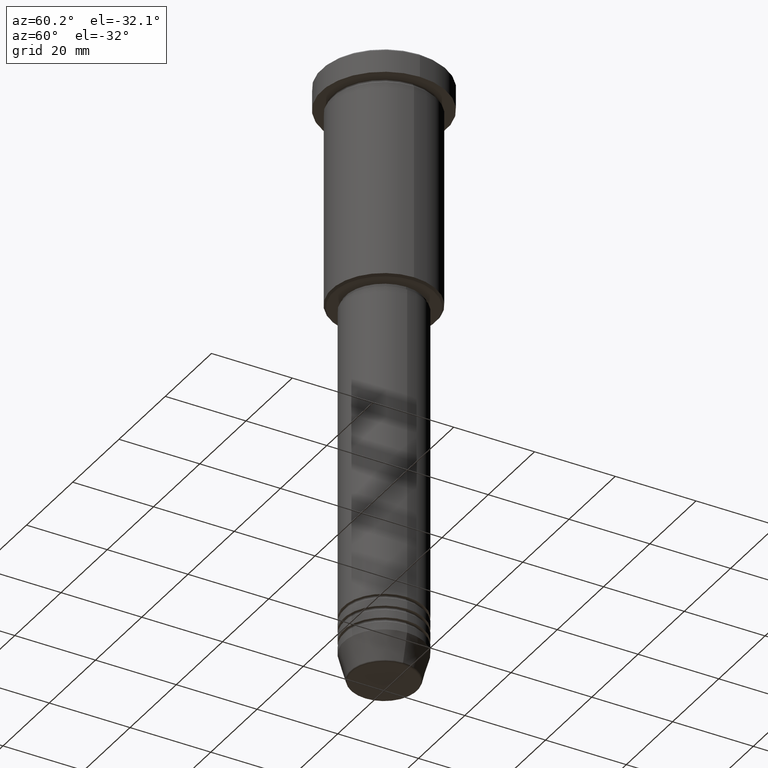
[diagram: clean part render]
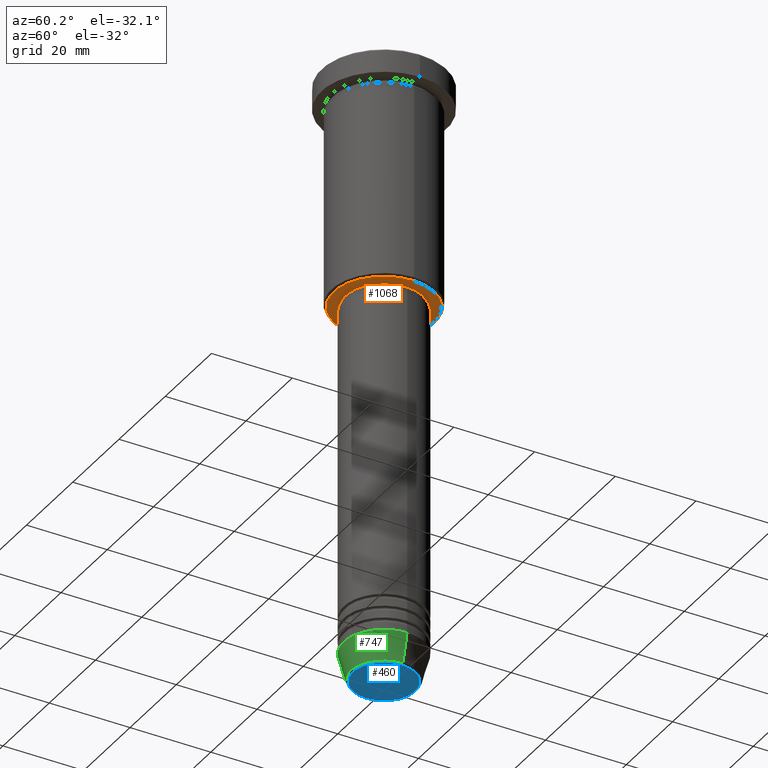
[diagram: same view with three faces highlighted in distinct colors, each labeled with its STEP entity id]
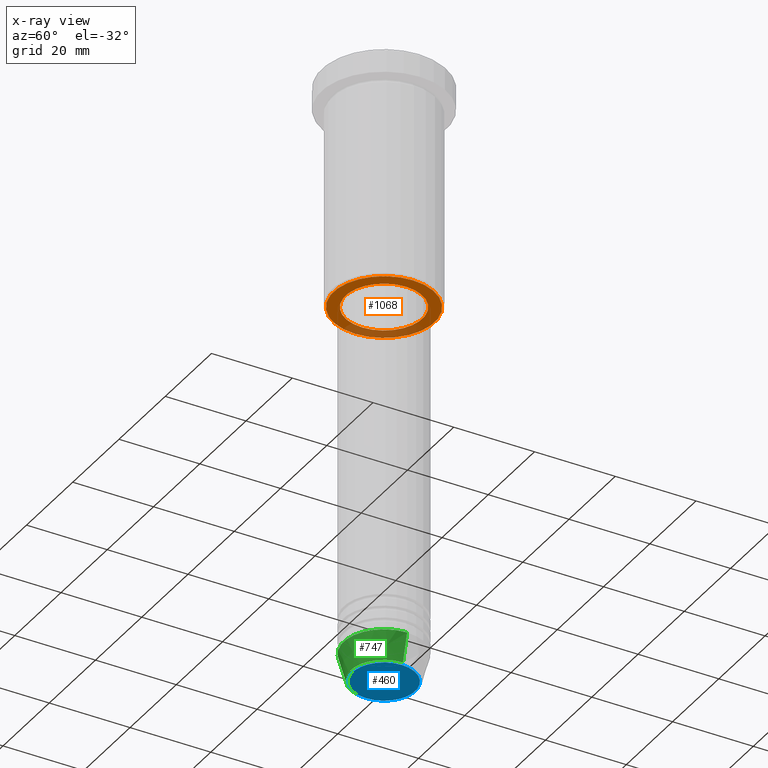
[diagram: x-ray of the same camera — body ghosted, the three highlighted faces saturated]
A machine part, auxiliary view with three faces highlighted in distinct colors.
The next image is the same camera in x-ray (body ghosted, the three faces saturated) — at least one of them is partly hidden behind the body in this view.
Their STEP definitions:

[orange] entity #1068 — the highlighted planar face has unit normal (0, 0, -1).
#66 = FACE_BOUND ( 'NONE', #99, .T. ) ;
#78 = FACE_OUTER_BOUND ( 'NONE', #148, .T. ) ;
#99 = EDGE_LOOP ( 'NONE', ( #1077, #779 ) ) ;
#100 = DIRECTION ( 'NONE',  ( -1.000000000000000000, 0.000000000000000000, 0.000000000000000000 ) ) ;
#148 = EDGE_LOOP ( 'NONE', ( #783, #1017 ) ) ;
#150 = CARTESIAN_POINT ( 'NONE',  ( 0.000000000000000000, 0.000000000000000000, -56.00000000000000711 ) ) ;
#161 = CARTESIAN_POINT ( 'NONE',  ( -9.500000000000000000, 1.163414459189985485E-15, -56.00000000000000711 ) ) ;
#169 = EDGE_CURVE ( 'NONE', #254, #436, #266, .T. ) ;
#183 = AXIS2_PLACEMENT_3D ( 'NONE', #1132, #673, #406 ) ;
#213 = DIRECTION ( 'NONE',  ( 1.000000000000000000, 0.000000000000000000, 0.000000000000000000 ) ) ;
#254 = VERTEX_POINT ( 'NONE', #582 ) ;
#255 = CARTESIAN_POINT ( 'NONE',  ( 9.500000000000000000, 0.000000000000000000, -56.00000000000000711 ) ) ;
#263 = DIRECTION ( 'NONE',  ( -1.000000000000000000, 0.000000000000000000, 0.000000000000000000 ) ) ;
#266 = CIRCLE ( 'NONE', #936, 12.50000000000001066 ) ;
#332 = DIRECTION ( 'NONE',  ( 0.000000000000000000, 0.000000000000000000, -1.000000000000000000 ) ) ;
#372 = EDGE_CURVE ( 'NONE', #436, #254, #1025, .T. ) ;
#391 = DIRECTION ( 'NONE',  ( -0.000000000000000000, -0.000000000000000000, 1.000000000000000000 ) ) ;
#406 = DIRECTION ( 'NONE',  ( 1.000000000000000000, 0.000000000000000000, 0.000000000000000000 ) ) ;
#436 = VERTEX_POINT ( 'NONE', #966 ) ;
#443 = AXIS2_PLACEMENT_3D ( 'NONE', #150, #332, #263 ) ;
#469 = CIRCLE ( 'NONE', #183, 9.500000000000000000 ) ;
#492 = VERTEX_POINT ( 'NONE', #255 ) ;
#552 = CARTESIAN_POINT ( 'NONE',  ( 0.000000000000000000, 0.000000000000000000, -56.00000000000000711 ) ) ;
#556 = AXIS2_PLACEMENT_3D ( 'NONE', #640, #391, #213 ) ;
#582 = CARTESIAN_POINT ( 'NONE',  ( 12.50000000000001066, 0.000000000000000000, -56.00000000000000711 ) ) ;
#640 = CARTESIAN_POINT ( 'NONE',  ( 0.000000000000000000, 0.000000000000000000, -56.00000000000000711 ) ) ;
#673 = DIRECTION ( 'NONE',  ( -0.000000000000000000, -0.000000000000000000, 1.000000000000000000 ) ) ;
#689 = EDGE_CURVE ( 'NONE', #492, #1039, #947, .T. ) ;
#731 = DIRECTION ( 'NONE',  ( 0.000000000000000000, 0.000000000000000000, -1.000000000000000000 ) ) ;
#759 = AXIS2_PLACEMENT_3D ( 'NONE', #1177, #1059, #1066 ) ;
#779 = ORIENTED_EDGE ( 'NONE', *, *, #1169, .T. ) ;
#783 = ORIENTED_EDGE ( 'NONE', *, *, #169, .T. ) ;
#824 = PLANE ( 'NONE',  #759 ) ;
#936 = AXIS2_PLACEMENT_3D ( 'NONE', #552, #731, #100 ) ;
#947 = CIRCLE ( 'NONE', #556, 9.500000000000000000 ) ;
#966 = CARTESIAN_POINT ( 'NONE',  ( -12.50000000000001066, 1.561424668912876097E-15, -56.00000000000000711 ) ) ;
#1017 = ORIENTED_EDGE ( 'NONE', *, *, #372, .T. ) ;
#1025 = CIRCLE ( 'NONE', #443, 12.50000000000001066 ) ;
#1039 = VERTEX_POINT ( 'NONE', #161 ) ;
#1059 = DIRECTION ( 'NONE',  ( 0.000000000000000000, 0.000000000000000000, -1.000000000000000000 ) ) ;
#1066 = DIRECTION ( 'NONE',  ( -1.000000000000000000, 0.000000000000000000, -0.000000000000000000 ) ) ;
#1068 = ADVANCED_FACE ( 'NONE', ( #78, #66 ), #824, .T. ) ;
#1077 = ORIENTED_EDGE ( 'NONE', *, *, #689, .T. ) ;
#1132 = CARTESIAN_POINT ( 'NONE',  ( 0.000000000000000000, 0.000000000000000000, -56.00000000000000711 ) ) ;
#1169 = EDGE_CURVE ( 'NONE', #1039, #492, #469, .T. ) ;
#1177 = CARTESIAN_POINT ( 'NONE',  ( 0.000000000000000000, 13.00000000000000000, -56.00000000000000711 ) ) ;

[blue] entity #460 — the highlighted planar face has unit normal (0, -0, 1).
#167 = DIRECTION ( 'NONE',  ( 0.000000000000000000, -0.000000000000000000, 1.000000000000000000 ) ) ;
#200 = AXIS2_PLACEMENT_3D ( 'NONE', #498, #748, #583 ) ;
#364 = AXIS2_PLACEMENT_3D ( 'NONE', #432, #167, #793 ) ;
#385 = CIRCLE ( 'NONE', #645, 7.740692158992658278 ) ;
#431 = CARTESIAN_POINT ( 'NONE',  ( 0.000000000000000000, 0.000000000000000000, -151.0000000000000284 ) ) ;
#432 = CARTESIAN_POINT ( 'NONE',  ( 0.000000000000000000, 0.000000000000000000, -151.0000000000000284 ) ) ;
#450 = ORIENTED_EDGE ( 'NONE', *, *, #1117, .T. ) ;
#460 = ADVANCED_FACE ( 'NONE', ( #1051 ), #519, .F. ) ;
#475 = CARTESIAN_POINT ( 'NONE',  ( 7.740692158992658278, 0.000000000000000000, -151.0000000000000284 ) ) ;
#498 = CARTESIAN_POINT ( 'NONE',  ( 0.000000000000000000, 0.000000000000000000, -151.0000000000000284 ) ) ;
#519 = PLANE ( 'NONE',  #364 ) ;
#583 = DIRECTION ( 'NONE',  ( 1.000000000000000000, 0.000000000000000000, 0.000000000000000000 ) ) ;
#615 = VERTEX_POINT ( 'NONE', #475 ) ;
#645 = AXIS2_PLACEMENT_3D ( 'NONE', #431, #792, #686 ) ;
#686 = DIRECTION ( 'NONE',  ( 1.000000000000000000, 0.000000000000000000, 0.000000000000000000 ) ) ;
#733 = VERTEX_POINT ( 'NONE', #859 ) ;
#748 = DIRECTION ( 'NONE',  ( 0.000000000000000000, 0.000000000000000000, -1.000000000000000000 ) ) ;
#792 = DIRECTION ( 'NONE',  ( 0.000000000000000000, 0.000000000000000000, -1.000000000000000000 ) ) ;
#793 = DIRECTION ( 'NONE',  ( 1.000000000000000000, 0.000000000000000000, 0.000000000000000000 ) ) ;
#859 = CARTESIAN_POINT ( 'NONE',  ( -7.740692158992658278, 9.775343368540041107E-16, -151.0000000000000284 ) ) ;
#881 = EDGE_CURVE ( 'NONE', #615, #733, #385, .T. ) ;
#909 = EDGE_LOOP ( 'NONE', ( #982, #450 ) ) ;
#982 = ORIENTED_EDGE ( 'NONE', *, *, #881, .T. ) ;
#1051 = FACE_OUTER_BOUND ( 'NONE', #909, .T. ) ;
#1100 = CIRCLE ( 'NONE', #200, 7.740692158992658278 ) ;
#1117 = EDGE_CURVE ( 'NONE', #733, #615, #1100, .T. ) ;

[green] entity #747 — the highlighted conical surface has half-angle 15 deg.
#14 = EDGE_CURVE ( 'NONE', #1069, #696, #754, .T. ) ;
#17 = CARTESIAN_POINT ( 'NONE',  ( 0.000000000000000000, 0.000000000000000000, -144.0000000000000284 ) ) ;
#31 = CARTESIAN_POINT ( 'NONE',  ( -10.00000000000000000, 1.224646799147353256E-15, -144.0000000000000284 ) ) ;
#103 = CIRCLE ( 'NONE', #285, 8.223655072137191269 ) ;
#203 = DIRECTION ( 'NONE',  ( -0.000000000000000000, -0.000000000000000000, 1.000000000000000000 ) ) ;
#257 = CARTESIAN_POINT ( 'NONE',  ( -8.223655072137191269, 1.115877042642912054E-15, -150.6294095225512706 ) ) ;
#273 = DIRECTION ( 'NONE',  ( 0.2588190451025213501, 0.000000000000000000, 0.9659258262890680902 ) ) ;
#285 = AXIS2_PLACEMENT_3D ( 'NONE', #1136, #861, #1131 ) ;
#320 = EDGE_CURVE ( 'NONE', #1069, #705, #103, .T. ) ;
#408 = DIRECTION ( 'NONE',  ( -0.000000000000000000, -0.000000000000000000, 1.000000000000000000 ) ) ;
#493 = FACE_OUTER_BOUND ( 'NONE', #562, .T. ) ;
#495 = DIRECTION ( 'NONE',  ( -0.2588190451025213501, 3.169619151431772337E-17, 0.9659258262890680902 ) ) ;
#497 = CARTESIAN_POINT ( 'NONE',  ( 8.223655072137191269, 0.000000000000000000, -150.6294095225512706 ) ) ;
#515 = ORIENTED_EDGE ( 'NONE', *, *, #14, .F. ) ;
#562 = EDGE_LOOP ( 'NONE', ( #515, #656, #603, #784 ) ) ;
#576 = EDGE_CURVE ( 'NONE', #705, #816, #726, .T. ) ;
#587 = AXIS2_PLACEMENT_3D ( 'NONE', #852, #203, #1038 ) ;
#603 = ORIENTED_EDGE ( 'NONE', *, *, #576, .T. ) ;
#656 = ORIENTED_EDGE ( 'NONE', *, *, #320, .T. ) ;
#696 = VERTEX_POINT ( 'NONE', #31 ) ;
#705 = VERTEX_POINT ( 'NONE', #497 ) ;
#721 = EDGE_CURVE ( 'NONE', #696, #816, #1183, .T. ) ;
#726 = LINE ( 'NONE', #730, #1044 ) ;
#730 = CARTESIAN_POINT ( 'NONE',  ( 10.00000000000000000, 0.000000000000000000, -144.0000000000000284 ) ) ;
#747 = ADVANCED_FACE ( 'NONE', ( #493 ), #1103, .T. ) ;
#754 = LINE ( 'NONE', #940, #848 ) ;
#763 = AXIS2_PLACEMENT_3D ( 'NONE', #17, #408, #946 ) ;
#784 = ORIENTED_EDGE ( 'NONE', *, *, #721, .F. ) ;
#816 = VERTEX_POINT ( 'NONE', #1055 ) ;
#848 = VECTOR ( 'NONE', #495, 1000.000000000000000 ) ;
#852 = CARTESIAN_POINT ( 'NONE',  ( 0.000000000000000000, 0.000000000000000000, -144.0000000000000284 ) ) ;
#861 = DIRECTION ( 'NONE',  ( -0.000000000000000000, -0.000000000000000000, 1.000000000000000000 ) ) ;
#940 = CARTESIAN_POINT ( 'NONE',  ( -10.00000000000000000, 1.224646799147353256E-15, -144.0000000000000284 ) ) ;
#946 = DIRECTION ( 'NONE',  ( 1.000000000000000000, 0.000000000000000000, 0.000000000000000000 ) ) ;
#1038 = DIRECTION ( 'NONE',  ( 1.000000000000000000, 0.000000000000000000, 0.000000000000000000 ) ) ;
#1044 = VECTOR ( 'NONE', #273, 1000.000000000000000 ) ;
#1055 = CARTESIAN_POINT ( 'NONE',  ( 10.00000000000000000, 0.000000000000000000, -144.0000000000000284 ) ) ;
#1069 = VERTEX_POINT ( 'NONE', #257 ) ;
#1103 = CONICAL_SURFACE ( 'NONE', #587, 10.00000000000000000, 0.2617993877991500740 ) ;
#1131 = DIRECTION ( 'NONE',  ( 1.000000000000000000, 0.000000000000000000, 0.000000000000000000 ) ) ;
#1136 = CARTESIAN_POINT ( 'NONE',  ( 0.000000000000000000, 0.000000000000000000, -150.6294095225512706 ) ) ;
#1183 = CIRCLE ( 'NONE', #763, 10.00000000000000000 ) ;